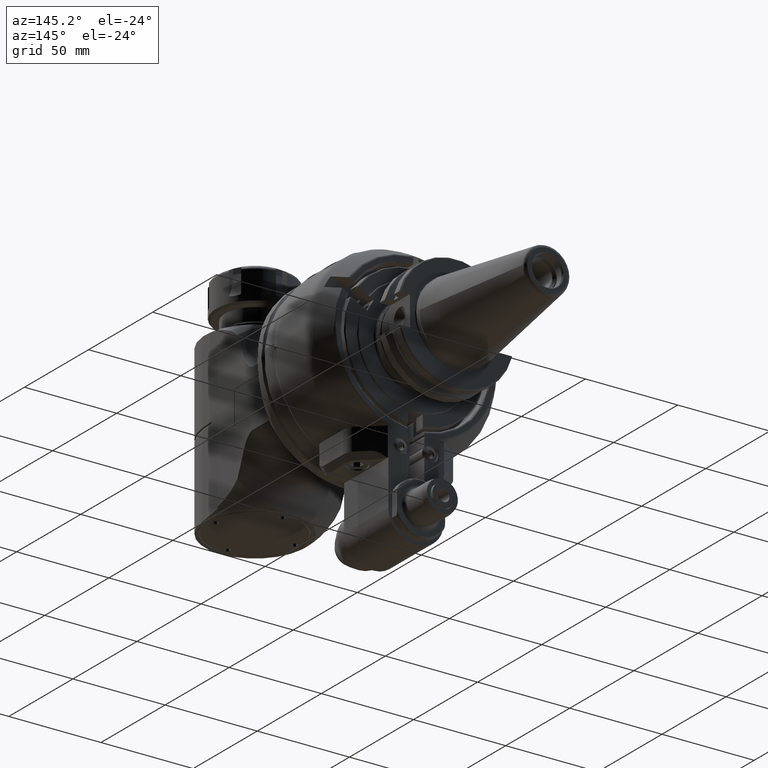
[diagram: clean part render]
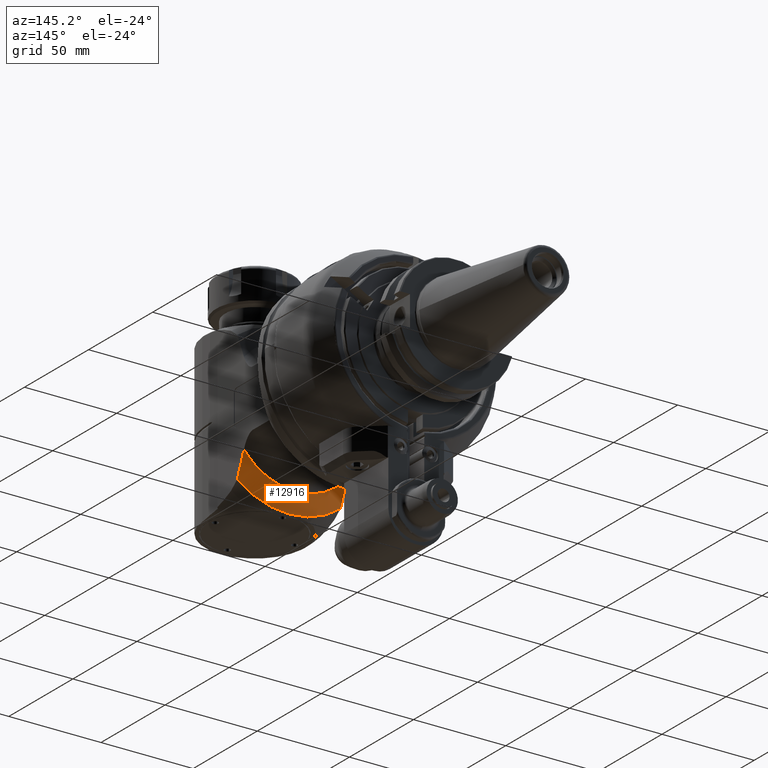
[diagram: same view with one face highlighted and labeled with its STEP entity id]
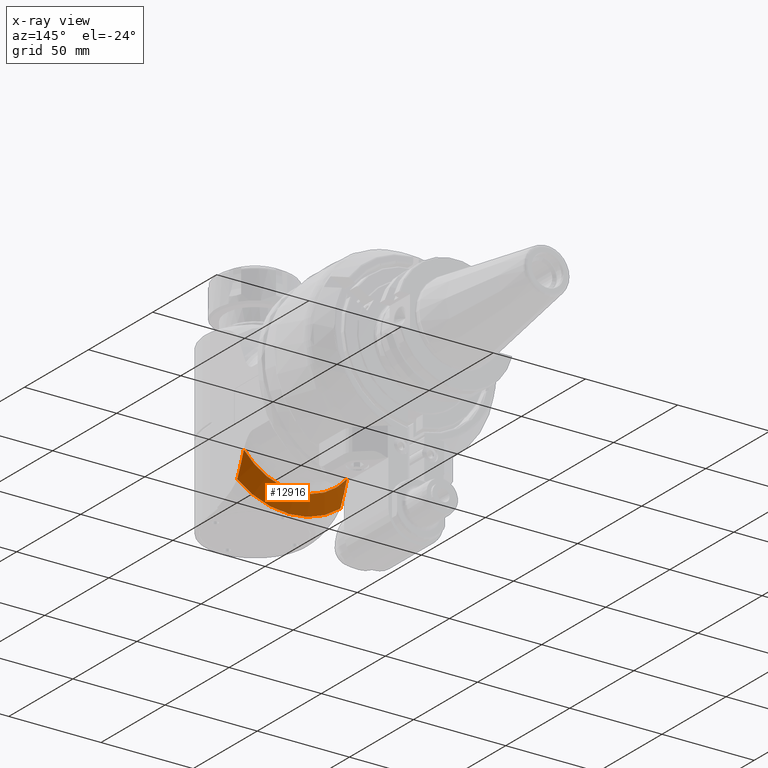
[diagram: x-ray of the same camera — body ghosted, the highlighted face saturated]
A machine part, auxiliary view. The second image highlights one B-rep face of the part: STEP entity #12916.
The next image is the same camera in x-ray: the body ghosted, the highlighted face saturated — about 2% of this face is hidden behind the body in this view.
In plain terms, the highlighted conical surface has half-angle 60 deg.
Its self-contained STEP definition (entity closure, byte-faithful):
#432=(
BOUNDED_CURVE()
B_SPLINE_CURVE(2,(#52322,#52323,#52324),.UNSPECIFIED.,.F.,.F.)
B_SPLINE_CURVE_WITH_KNOTS((3,3),(11.1418606523245,12.5466422600916),
 .UNSPECIFIED.)
CURVE()
GEOMETRIC_REPRESENTATION_ITEM()
RATIONAL_B_SPLINE_CURVE((1.58677165235107,1.50405038971858,1.39114226877562))
REPRESENTATION_ITEM('')
);
#450=(
BOUNDED_CURVE()
B_SPLINE_CURVE(2,(#52708,#52709,#52710),.UNSPECIFIED.,.F.,.F.)
B_SPLINE_CURVE_WITH_KNOTS((3,3),(-3.54863226084856,-2.12423992536637),
 .UNSPECIFIED.)
CURVE()
GEOMETRIC_REPRESENTATION_ITEM()
RATIONAL_B_SPLINE_CURVE((1.60728382094121,1.52349322203514,1.40912553984427))
REPRESENTATION_ITEM('')
);
#1802=FACE_OUTER_BOUND('',#2703,.T.);
#2703=EDGE_LOOP('',(#11315,#11316,#11317,#11318,#11319));
#3512=CIRCLE('',#14395,36.);
#3513=CIRCLE('',#14397,45.);
#3514=CIRCLE('',#14398,45.);
#6185=VERTEX_POINT('',#52317);
#6186=VERTEX_POINT('',#52321);
#6228=VERTEX_POINT('',#52608);
#6245=VERTEX_POINT('',#52692);
#6246=VERTEX_POINT('',#52707);
#7904=EDGE_CURVE('',#6186,#6185,#432,.T.);
#7981=EDGE_CURVE('',#6245,#6246,#450,.T.);
#8009=EDGE_CURVE('',#6186,#6245,#3512,.T.);
#8010=EDGE_CURVE('',#6185,#6228,#3513,.T.);
#8011=EDGE_CURVE('',#6228,#6246,#3514,.T.);
#11315=ORIENTED_EDGE('',*,*,#8009,.F.);
#11316=ORIENTED_EDGE('',*,*,#7904,.T.);
#11317=ORIENTED_EDGE('',*,*,#8010,.T.);
#11318=ORIENTED_EDGE('',*,*,#8011,.T.);
#11319=ORIENTED_EDGE('',*,*,#7981,.F.);
#12262=CONICAL_SURFACE('',#14396,40.5,1.0471975511966);
#12916=ADVANCED_FACE('',(#1802),#12262,.T.);
#14395=AXIS2_PLACEMENT_3D('',#52827,#17838,#17839);
#14396=AXIS2_PLACEMENT_3D('',#52828,#17840,#17841);
#14397=AXIS2_PLACEMENT_3D('',#52829,#17842,#17843);
#14398=AXIS2_PLACEMENT_3D('',#52830,#17844,#17845);
#17838=DIRECTION('center_axis',(-1.,0.,0.));
#17839=DIRECTION('ref_axis',(0.,0.628539361054693,0.777777777777791));
#17840=DIRECTION('center_axis',(1.,0.,0.));
#17841=DIRECTION('ref_axis',(0.,1.,0.));
#17842=DIRECTION('center_axis',(-1.,0.,0.));
#17843=DIRECTION('ref_axis',(0.,0.782840664613806,0.622222222222105));
#17844=DIRECTION('center_axis',(-1.,0.,0.));
#17845=DIRECTION('ref_axis',(0.,1.,0.));
#52317=CARTESIAN_POINT('',(63.5055535658784,35.2278300211639,27.9999999663396));
#52321=CARTESIAN_POINT('',(58.30940107676,22.62741699797,28.));
#52322=CARTESIAN_POINT('Ctrl Pts',(58.3094010767572,22.627416997971,28.));
#52323=CARTESIAN_POINT('Ctrl Pts',(60.3416369571526,28.2276005599083,28.));
#52324=CARTESIAN_POINT('Ctrl Pts',(63.5055535533533,35.2278300268497,28.));
#52608=CARTESIAN_POINT('',(63.50555349947,45.,3.159589618233E-14));
#52692=CARTESIAN_POINT('',(58.30940107676,22.62741699797,-28.));
#52707=CARTESIAN_POINT('',(63.5055535659185,35.2278300212323,-27.9999999663193));
#52708=CARTESIAN_POINT('Ctrl Pts',(58.3094010767572,22.627416997971,-28.));
#52709=CARTESIAN_POINT('Ctrl Pts',(60.3416369571628,28.2276005599363,-28.));
#52710=CARTESIAN_POINT('Ctrl Pts',(63.5055535533858,35.2278300269216,-28.));
#52827=CARTESIAN_POINT('Origin',(58.30940107676,0.,0.));
#52828=CARTESIAN_POINT('Origin',(60.90747728811,0.,0.));
#52829=CARTESIAN_POINT('Origin',(63.50555349947,0.,0.));
#52830=CARTESIAN_POINT('Origin',(63.50555349947,0.,0.));